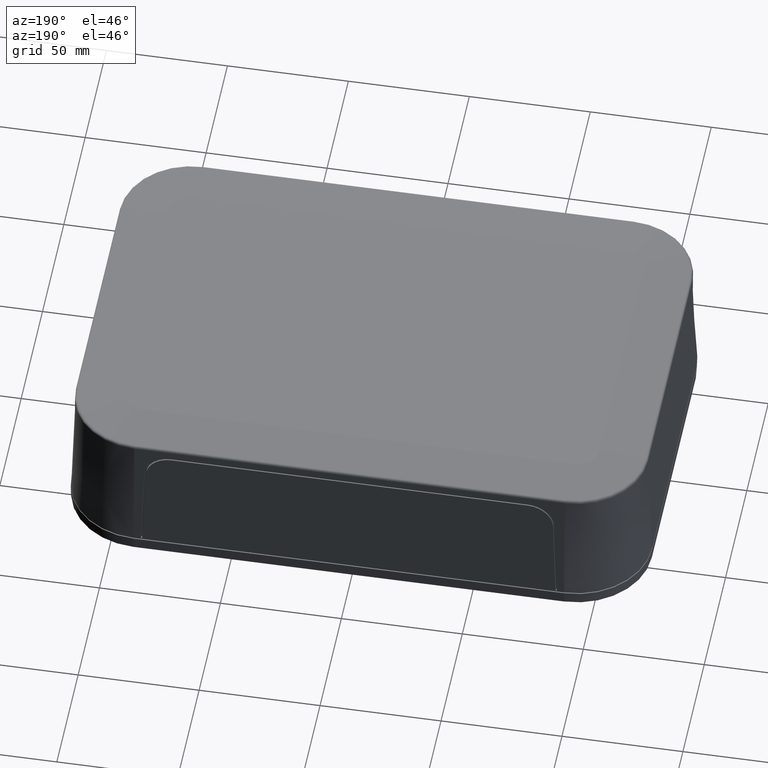
[diagram: clean part render]
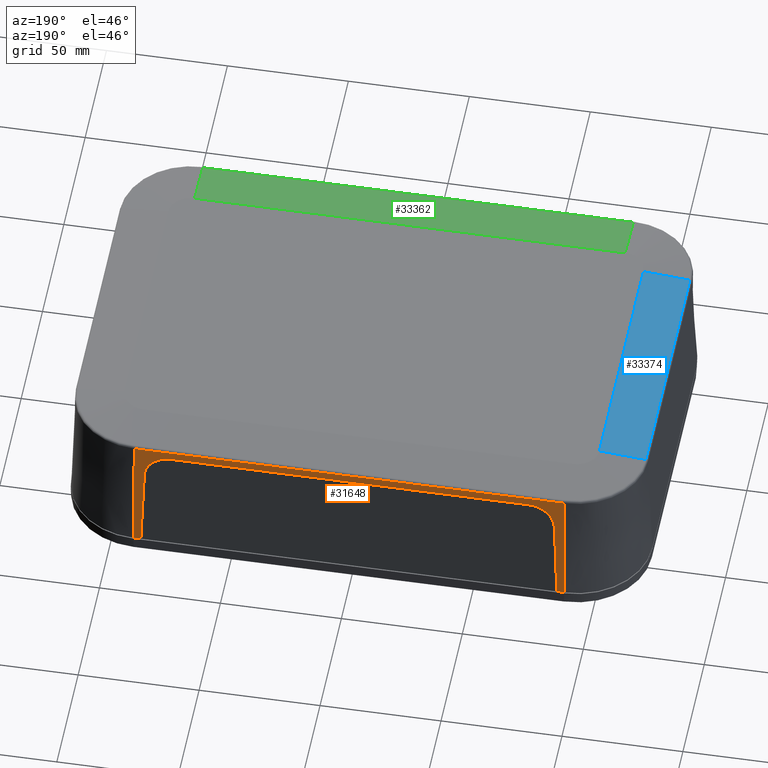
[diagram: same view with three faces highlighted in distinct colors, each labeled with its STEP entity id]
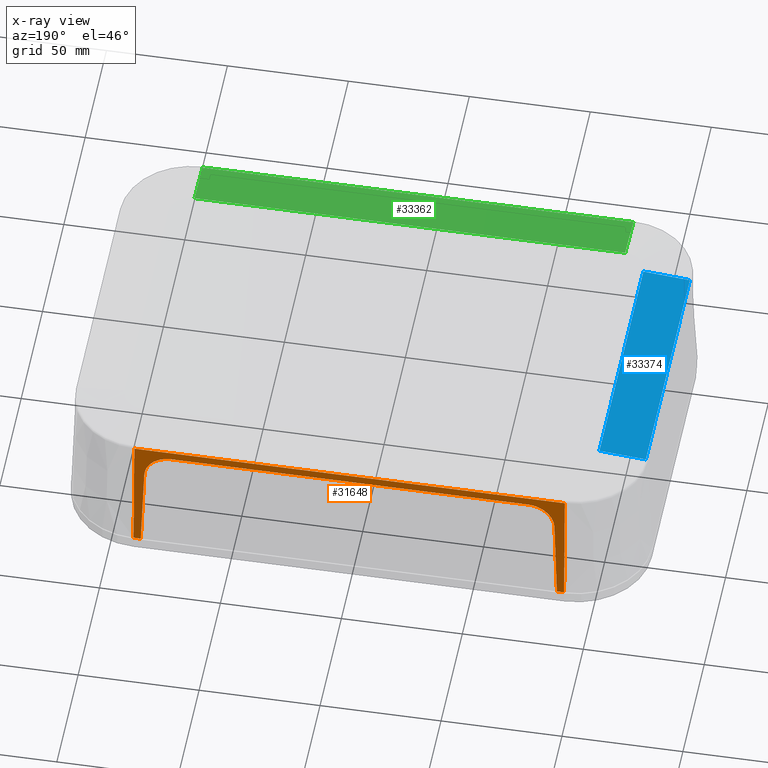
[diagram: x-ray of the same camera — body ghosted, the three highlighted faces saturated]
A machine part, auxiliary view with three faces highlighted in distinct colors.
The next image is the same camera in x-ray (body ghosted, the three faces saturated) — at least one of them is partly hidden behind the body in this view.
Their STEP definitions:

[orange] entity #31648 — the highlighted planar face has unit normal (-0, 0.9994, 0.0349).
#22172=CARTESIAN_POINT('',(85.999999999999972,82.500000000000014,0.0));
#22173=VERTEX_POINT('',#22172);
#22180=CARTESIAN_POINT('',(89.000000000000028,82.500000000000014,0.0));
#22181=VERTEX_POINT('',#22180);
#22182=CARTESIAN_POINT('',(85.999999999999972,82.500000000000014,0.0));
#22183=DIRECTION('',(1.0,0.0,0.0));
#22184=VECTOR('',#22183,3.000000000000057);
#22185=LINE('',#22182,#22184);
#22186=EDGE_CURVE('',#22173,#22181,#22185,.T.);
#29990=CARTESIAN_POINT('',(-89.000000000000028,80.739491139584615,50.414377633672146));
#29991=VERTEX_POINT('',#29990);
#30001=CARTESIAN_POINT('',(-89.000000000000028,82.5,0.0));
#30002=VERTEX_POINT('',#30001);
#30003=CARTESIAN_POINT('',(-89.000000000000028,82.5,0.0));
#30004=DIRECTION('',(0.0,-0.034899496702501,0.999390827019096));
#30005=VECTOR('',#30004,50.445107430137391);
#30006=LINE('',#30003,#30005);
#30007=EDGE_CURVE('',#30002,#29991,#30006,.T.);
#30098=CARTESIAN_POINT('',(89.000000000000028,80.739491139584629,50.414377633672146));
#30099=VERTEX_POINT('',#30098);
#30109=CARTESIAN_POINT('',(89.000000000000028,82.500000000000014,0.0));
#30110=DIRECTION('',(0.0,-0.034899496702501,0.999390827019096));
#30111=VECTOR('',#30110,50.445107430137391);
#30112=LINE('',#30109,#30111);
#30113=EDGE_CURVE('',#22181,#30099,#30112,.T.);
#31488=CARTESIAN_POINT('',(89.000000000000028,80.739491139584629,50.414377633672146));
#31489=DIRECTION('',(-1.0,0.0,0.0));
#31490=VECTOR('',#31489,178.00000000000006);
#31491=LINE('',#31488,#31490);
#31492=EDGE_CURVE('',#30099,#29991,#31491,.T.);
#31589=CARTESIAN_POINT('',(-89.000000000000028,82.5,0.0));
#31590=DIRECTION('',(-9.973454E-017,0.999390827019096,0.034899496702501));
#31591=DIRECTION('',(-1.0,0.0,0.0));
#31592=AXIS2_PLACEMENT_3D('',#31589,#31590,#31591);
#31593=PLANE('',#31592);
#31594=ORIENTED_EDGE('',*,*,#31492,.F.);
#31595=ORIENTED_EDGE('',*,*,#30113,.F.);
#31596=ORIENTED_EDGE('',*,*,#22186,.F.);
#31597=CARTESIAN_POINT('',(84.761727615698845,81.229783155307331,36.374251288845507));
#31598=VERTEX_POINT('',#31597);
#31599=CARTESIAN_POINT('',(85.999999999999972,82.500000000000014,0.0));
#31600=DIRECTION('',(-0.03400214261227,-0.034879316416415,0.99881293923542));
#31601=VECTOR('',#31600,36.417481051746876);
#31602=LINE('',#31599,#31601);
#31603=EDGE_CURVE('',#22173,#31598,#31602,.T.);
#31604=ORIENTED_EDGE('',*,*,#31603,.T.);
#31605=CARTESIAN_POINT('',(73.76809600586229,80.858723833887879,47.0));
#31606=VERTEX_POINT('',#31605);
#31607=CARTESIAN_POINT('',(73.76809600586229,81.242852298297095,36.000000000000007));
#31608=DIRECTION('',(-9.973454E-017,0.999390827019096,0.034899496702501));
#31609=DIRECTION('',(-3.126904E-015,-0.034899496702501,0.999390827019096));
#31610=AXIS2_PLACEMENT_3D('',#31607,#31608,#31609);
#31611=ELLIPSE('',#31610,11.006704987287039,11.000000000000002);
#31612=EDGE_CURVE('',#31606,#31598,#31611,.T.);
#31613=ORIENTED_EDGE('',*,*,#31612,.F.);
#31614=CARTESIAN_POINT('',(-73.768096005862304,80.858723833887865,47.0));
#31615=VERTEX_POINT('',#31614);
#31616=CARTESIAN_POINT('',(73.76809600586229,80.858723833887879,47.0));
#31617=DIRECTION('',(-1.0,0.0,0.0));
#31618=VECTOR('',#31617,147.53619201172461);
#31619=LINE('',#31616,#31618);
#31620=EDGE_CURVE('',#31606,#31615,#31619,.T.);
#31621=ORIENTED_EDGE('',*,*,#31620,.T.);
#31622=CARTESIAN_POINT('',(-84.761727615698845,81.229783155307317,36.374251288845507));
#31623=VERTEX_POINT('',#31622);
#31624=CARTESIAN_POINT('',(-73.768096005862304,81.24285229829708,36.000000000000007));
#31625=DIRECTION('',(-9.973454E-017,0.999390827019096,0.034899496702501));
#31626=DIRECTION('',(3.126904E-015,-0.034899496702501,0.999390827019096));
#31627=AXIS2_PLACEMENT_3D('',#31624,#31625,#31626);
#31628=ELLIPSE('',#31627,11.006704987287039,11.000000000000002);
#31629=EDGE_CURVE('',#31623,#31615,#31628,.T.);
#31630=ORIENTED_EDGE('',*,*,#31629,.F.);
#31631=CARTESIAN_POINT('',(-86.0,82.5,0.0));
#31632=VERTEX_POINT('',#31631);
#31633=CARTESIAN_POINT('',(-84.761727615698845,81.229783155307317,36.374251288845507));
#31634=DIRECTION('',(-0.03400214261227,0.034879316416415,-0.99881293923542));
#31635=VECTOR('',#31634,36.417481051746876);
#31636=LINE('',#31633,#31635);
#31637=EDGE_CURVE('',#31623,#31632,#31636,.T.);
#31638=ORIENTED_EDGE('',*,*,#31637,.T.);
#31639=CARTESIAN_POINT('',(-89.000000000000028,82.5,0.0));
#31640=DIRECTION('',(1.0,0.0,0.0));
#31641=VECTOR('',#31640,3.000000000000028);
#31642=LINE('',#31639,#31641);
#31643=EDGE_CURVE('',#30002,#31632,#31642,.T.);
#31644=ORIENTED_EDGE('',*,*,#31643,.F.);
#31645=ORIENTED_EDGE('',*,*,#30007,.T.);
#31646=EDGE_LOOP('',(#31594,#31595,#31596,#31604,#31613,#31621,#31630,#31638,#31644,#31645));
#31647=FACE_OUTER_BOUND('',#31646,.T.);
#31648=ADVANCED_FACE('',(#31647),#31593,.T.);

[blue] entity #33374 — the highlighted planar face has unit normal (-0.0844, -0, 0.9964).
#30032=CARTESIAN_POINT('',(-117.3244951175492,51.499999999999993,51.37591053151116));
#30033=VERTEX_POINT('',#30032);
#30043=CARTESIAN_POINT('',(-98.149199216937362,51.499999999999986,53.000000000000007));
#30044=VERTEX_POINT('',#30043);
#30045=CARTESIAN_POINT('',(-98.149199216937362,51.499999999999986,53.000000000000007));
#30046=DIRECTION('',(-0.996432394541532,3.692291E-016,-0.084394804983656));
#30047=VECTOR('',#30046,19.243950724258202);
#30048=LINE('',#30045,#30047);
#30049=EDGE_CURVE('',#30044,#30033,#30048,.T.);
#30308=CARTESIAN_POINT('',(-117.32449511754916,-51.499999999999986,51.375910531511153));
#30309=VERTEX_POINT('',#30308);
#30325=CARTESIAN_POINT('',(-98.149199216937376,-51.499999999999979,53.000000000000007));
#30326=VERTEX_POINT('',#30325);
#30334=CARTESIAN_POINT('',(-98.149199216937376,-51.499999999999979,53.000000000000007));
#30335=DIRECTION('',(-0.996432394541532,-3.692291E-016,-0.084394804983656));
#30336=VECTOR('',#30335,19.243950724258145);
#30337=LINE('',#30334,#30336);
#30338=EDGE_CURVE('',#30326,#30309,#30337,.T.);
#30800=CARTESIAN_POINT('',(-98.149199216937362,-51.499999999999979,53.000000000000007));
#30801=DIRECTION('',(0.0,1.0,0.0));
#30802=VECTOR('',#30801,102.99999999999997);
#30803=LINE('',#30800,#30802);
#30804=EDGE_CURVE('',#30326,#30044,#30803,.T.);
#31517=CARTESIAN_POINT('',(-117.32449511754916,-51.499999999999986,51.375910531511167));
#31518=DIRECTION('',(0.0,1.0,0.0));
#31519=VECTOR('',#31518,103.0);
#31520=LINE('',#31517,#31519);
#31521=EDGE_CURVE('',#30309,#30033,#31520,.T.);
#33363=CARTESIAN_POINT('',(-108.1788637891345,-25.749999999999989,52.150517797033785));
#33364=DIRECTION('',(-0.084394804983656,0.0,0.996432394541532));
#33365=DIRECTION('',(0.996432394541532,0.0,0.084394804983656));
#33366=AXIS2_PLACEMENT_3D('',#33363,#33364,#33365);
#33367=PLANE('',#33366);
#33368=ORIENTED_EDGE('',*,*,#31521,.F.);
#33369=ORIENTED_EDGE('',*,*,#30338,.F.);
#33370=ORIENTED_EDGE('',*,*,#30804,.T.);
#33371=ORIENTED_EDGE('',*,*,#30049,.T.);
#33372=EDGE_LOOP('',(#33368,#33369,#33370,#33371));
#33373=FACE_OUTER_BOUND('',#33372,.T.);
#33374=ADVANCED_FACE('',(#33373),#33367,.T.);

[green] entity #33362 — the highlighted planar face has unit normal (0, -0.0844, 0.9964).
#30206=CARTESIAN_POINT('',(89.000000000000028,-79.824495117549162,51.375910531511153));
#30207=VERTEX_POINT('',#30206);
#30241=CARTESIAN_POINT('',(89.000000000000028,-60.649199216937369,53.000000000000007));
#30242=VERTEX_POINT('',#30241);
#30250=CARTESIAN_POINT('',(89.000000000000028,-60.649199216937369,53.000000000000007));
#30251=DIRECTION('',(0.0,-0.996432394541532,-0.084394804983656));
#30252=VECTOR('',#30251,19.243950724258152);
#30253=LINE('',#30250,#30252);
#30254=EDGE_CURVE('',#30242,#30207,#30253,.T.);
#30306=CARTESIAN_POINT('',(-89.000000000000028,-79.824495117549162,51.375910531511167));
#30307=VERTEX_POINT('',#30306);
#30317=CARTESIAN_POINT('',(-89.000000000000028,-60.649199216937326,53.000000000000007));
#30318=VERTEX_POINT('',#30317);
#30319=CARTESIAN_POINT('',(-89.000000000000028,-60.649199216937326,53.000000000000007));
#30320=DIRECTION('',(0.0,-0.996432394541532,-0.084394804983655));
#30321=VECTOR('',#30320,19.243950724258191);
#30322=LINE('',#30319,#30321);
#30323=EDGE_CURVE('',#30318,#30307,#30322,.T.);
#30807=CARTESIAN_POINT('',(89.000000000000028,-60.649199216937362,53.000000000000007));
#30808=DIRECTION('',(-1.0,0.0,0.0));
#30809=VECTOR('',#30808,178.00000000000006);
#30810=LINE('',#30807,#30809);
#30811=EDGE_CURVE('',#30242,#30318,#30810,.T.);
#31539=CARTESIAN_POINT('',(89.000000000000028,-79.824495117549162,51.375910531511167));
#31540=DIRECTION('',(-1.0,0.0,0.0));
#31541=VECTOR('',#31540,178.00000000000006);
#31542=LINE('',#31539,#31541);
#31543=EDGE_CURVE('',#30207,#30307,#31542,.T.);
#33351=CARTESIAN_POINT('',(44.500000000000014,-70.678863789134482,52.150517797033785));
#33352=DIRECTION('',(-1.684441E-017,-0.084394804983655,0.996432394541532));
#33353=DIRECTION('',(1.0,0.0,0.0));
#33354=AXIS2_PLACEMENT_3D('',#33351,#33352,#33353);
#33355=PLANE('',#33354);
#33356=ORIENTED_EDGE('',*,*,#31543,.F.);
#33357=ORIENTED_EDGE('',*,*,#30254,.F.);
#33358=ORIENTED_EDGE('',*,*,#30811,.T.);
#33359=ORIENTED_EDGE('',*,*,#30323,.T.);
#33360=EDGE_LOOP('',(#33356,#33357,#33358,#33359));
#33361=FACE_OUTER_BOUND('',#33360,.T.);
#33362=ADVANCED_FACE('',(#33361),#33355,.T.);